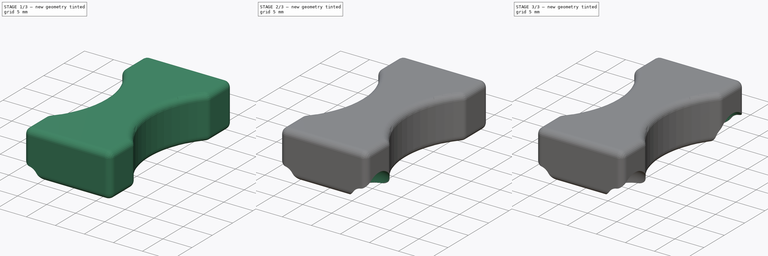
[diagram: build sequence overview — one tinted view per stage of 3, left to right]
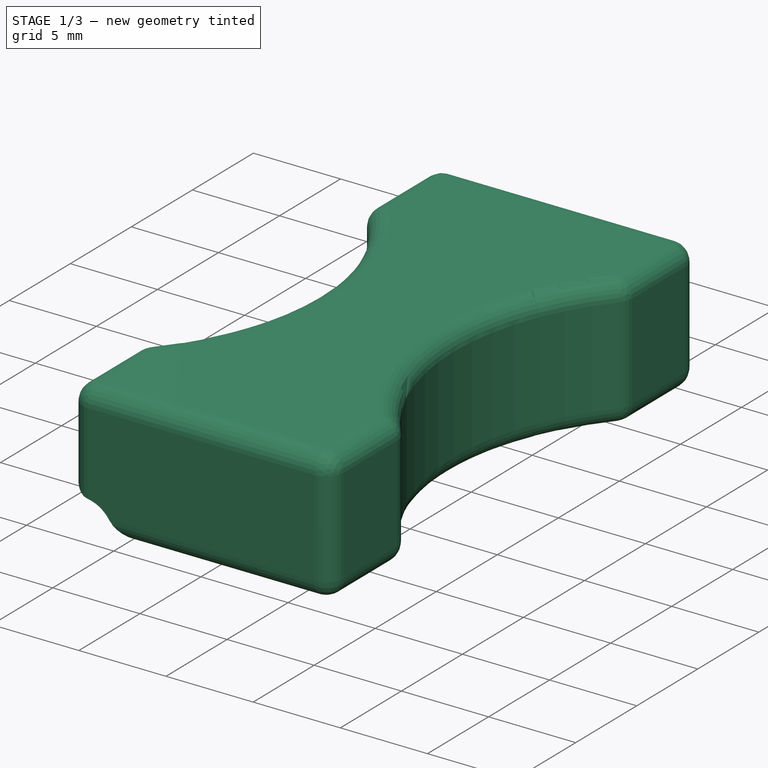
[diagram: stage 1 of 3 — iso view after this stage's code; geometry added in this stage tinted green]
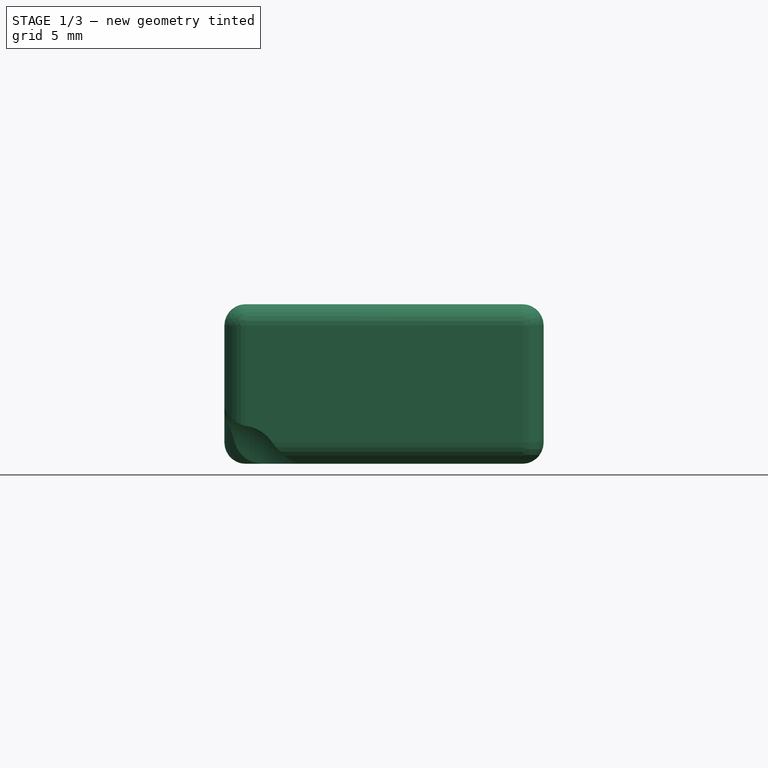
[diagram: stage 1 of 3 — front view after this stage's code; geometry added in this stage tinted green]
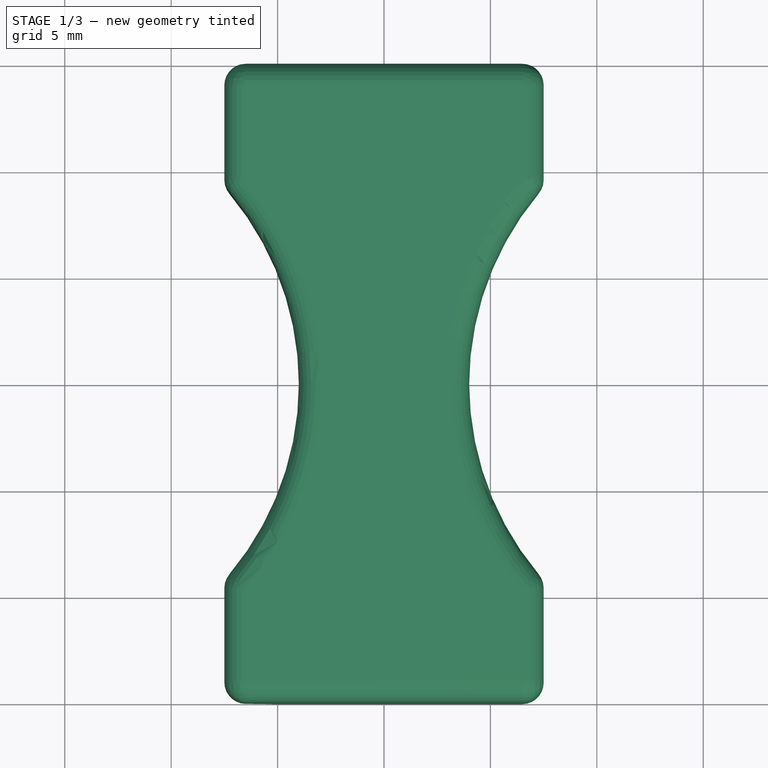
[diagram: stage 1 of 3 — top view after this stage's code; geometry added in this stage tinted green]
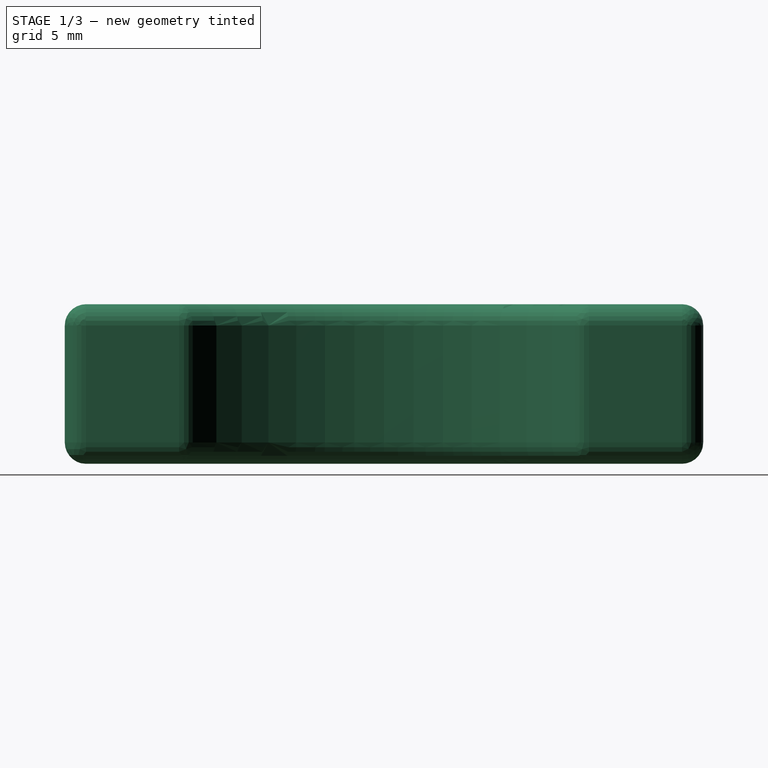
[diagram: stage 1 of 3 — right view after this stage's code; geometry added in this stage tinted green]
FCSTD DOCUMENT  (FreeCAD 0.19R)
Label: chssis-mod
License: All rights reserved
LicenseURL: http://en.wikipedia.org/wiki/All_rights_reserved
objects: PartDesign::SubtractiveSphere×4, Sketcher::SketchObject×2, PartDesign::Hole×2, Part::Feature×1, Part::Refine×1, PartDesign::FeatureBase×1, PartDesign::Body×1
note: 18 computed .brp shape members not serialized (recipe doc carries the construction recipe); baked Part::Feature solids carry a one-line shape summary decoded from their .brp

FEATURE [Part::Feature] chassis_Body001_solid  label="chassis_Body001 (Solid)"
  shape: bbox 15 x 30 x 7.5 mm, 2256 faces (baked)
FEATURE [Part::Refine] chassis_Body001_solid001  label="chassis_Body001 (Solid)001"
  Source = -> chassis_Body001_solid
FEATURE [PartDesign::FeatureBase] BaseFeature
  BaseFeature = -> chassis_Body001_solid001
FEATURE [Sketcher::SketchObject] Sketch
  FullyConstrained = true
  MapMode = 5
  Placement = pos=(-7.5,0,0) rot=(0.57735,-0.57735,-0.57735;2.0944rad)
  Support = -> [BaseFeature]
  sketch-geometry (2):
    g0: Circle CenterX=-12 CenterY=0 CenterZ=0 NormalX=0 NormalY=0 NormalZ=1 AngleXU=0 Radius=3.5
    g1: Circle CenterX=12 CenterY=0 CenterZ=0 NormalX=0 NormalY=0 NormalZ=1 AngleXU=0 Radius=3.5
  constraints (6):
    c: PointOnObject(g0,g-1)
    c: PointOnObject(g1,g-1)
    c: Radius(g1) = 3.5
    c: Radius(g0) = 3.5
    c: Distance(g0,g-2) = 12
    c: Distance(g1,g-2) = 12
FEATURE [Sketcher::SketchObject] Sketch001
  FullyConstrained = true
  MapMode = 5
  Placement = pos=(7.5,0,0) rot=(0.57735,0.57735,0.57735;2.0944rad)
  sketch-geometry (2):
    g0: Circle CenterX=12 CenterY=0 CenterZ=0 NormalX=0 NormalY=0 NormalZ=1 AngleXU=0 Radius=3.5
    g1: Circle CenterX=-12 CenterY=0 CenterZ=0 NormalX=0 NormalY=0 NormalZ=1 AngleXU=0 Radius=3.5
  constraints (6):
    c: PointOnObject(g0,g-1)
    c: PointOnObject(g1,g-1)
    c: Radius(g0) = 3.5
    c: Radius(g1) = 3.5
    c: Distance(g0,g-2) = 12
    c: Distance(g1,g-2) = 12
FEATURE [PartDesign::SubtractiveSphere] Sphere
  Angle1 = -90
  Angle2 = 90
  Angle3 = 360
  AttacherType = Attacher::AttachEngine3D
  AttachmentOffset = pos=(0,0,-0.75) rot=(0,0,1;0rad)
  BaseFeature = -> BaseFeature
  MapMode = 11
  Placement = pos=(-6.75,-12,-2e-16) rot=(0,-1,0;1.5708rad)
  Radius = 3.5
  Support = -> [Sketch]
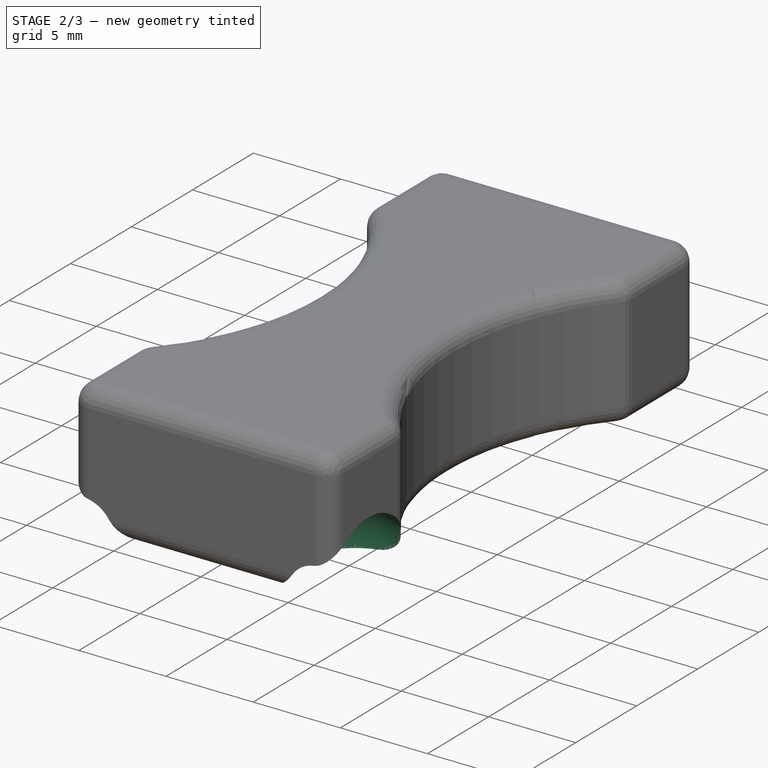
[diagram: stage 2 of 3 — iso view after this stage's code; geometry added in this stage tinted green]
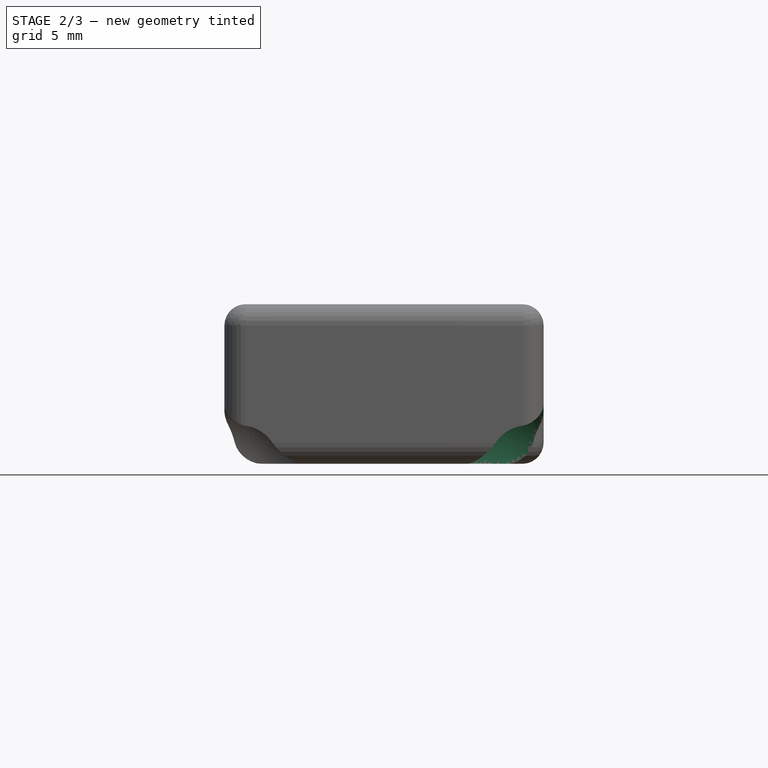
[diagram: stage 2 of 3 — front view after this stage's code; geometry added in this stage tinted green]
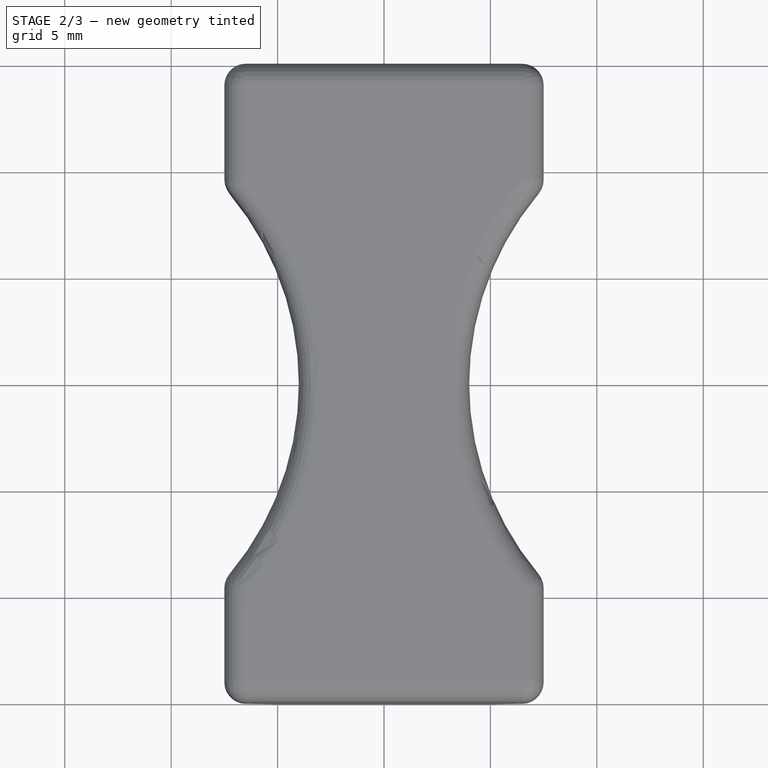
[diagram: stage 2 of 3 — top view after this stage's code; geometry added in this stage tinted green]
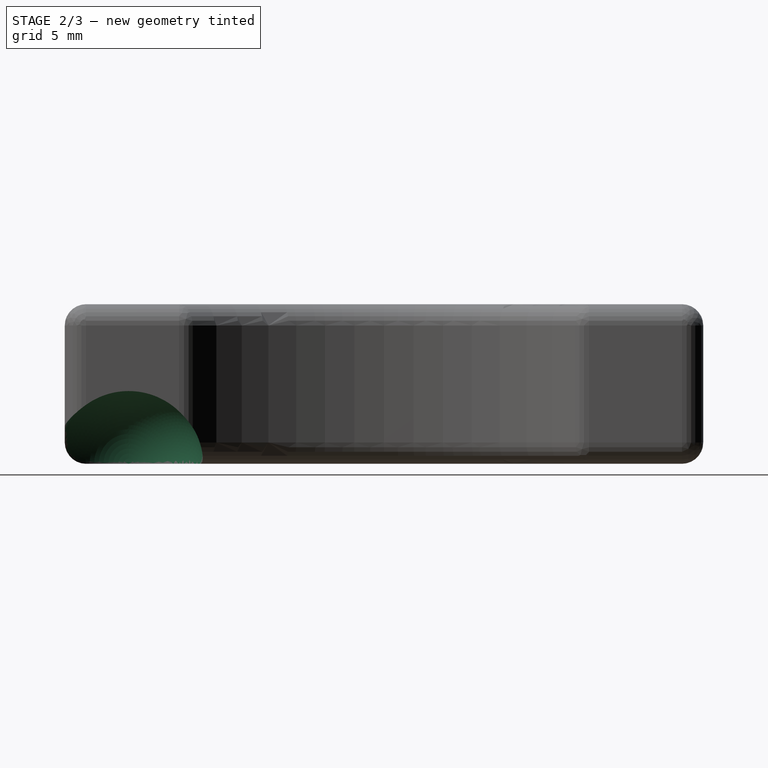
[diagram: stage 2 of 3 — right view after this stage's code; geometry added in this stage tinted green]
FEATURE [PartDesign::SubtractiveSphere] Sphere001
  Angle1 = -90
  Angle2 = 90
  Angle3 = 360
  AttacherType = Attacher::AttachEngine3D
  AttachmentOffset = pos=(0,0,-0.75) rot=(0,0,1;0rad)
  BaseFeature = -> Sphere
  MapMode = 11
  Placement = pos=(-6.75,12,-2e-16) rot=(0,-1,0;1.5708rad)
  Radius = 3.5
  Support = -> [Sketch]
FEATURE [PartDesign::Hole] Hole
  BaseFeature = -> Sphere001
  Depth = 2.5
  DepthType = 0
  Diameter = 6
  DrillForDepth = false
  DrillPoint = 0
  DrillPointAngle = 118
  HoleCutCountersinkAngle = 90
  HoleCutCustomValues = false
  HoleCutDepth = 0
  HoleCutDiameter = 6.1
  HoleCutType = 0
  ModelActualThread = false
  Placement = pos=(-6.75,12,-2e-16) rot=(0,-1,0;1.5708rad)
  Profile = -> Sketch
  Tapered = false
  TaperedAngle = 90
  ThreadAngle = 0
  ThreadClass = 0
  ThreadCutOffInner = 0
  ThreadCutOffOuter = 0
  ThreadDirection = 0
  ThreadFit = 0
  ThreadPitch = 0
  ThreadSize = 0
  ThreadType = 0
  Threaded = false
FEATURE [PartDesign::SubtractiveSphere] Sphere002
  Angle1 = -90
  Angle2 = 90
  Angle3 = 360
  AttacherType = Attacher::AttachEngine3D
  AttachmentOffset = pos=(0,0,-0.75) rot=(0,0,1;0rad)
  BaseFeature = -> Hole
  MapMode = 11
  Placement = pos=(6.75,-12,2e-16) rot=(0.707107,0,0.707107;3.14159rad)
  Radius = 3.5
  Support = -> [Sketch001]
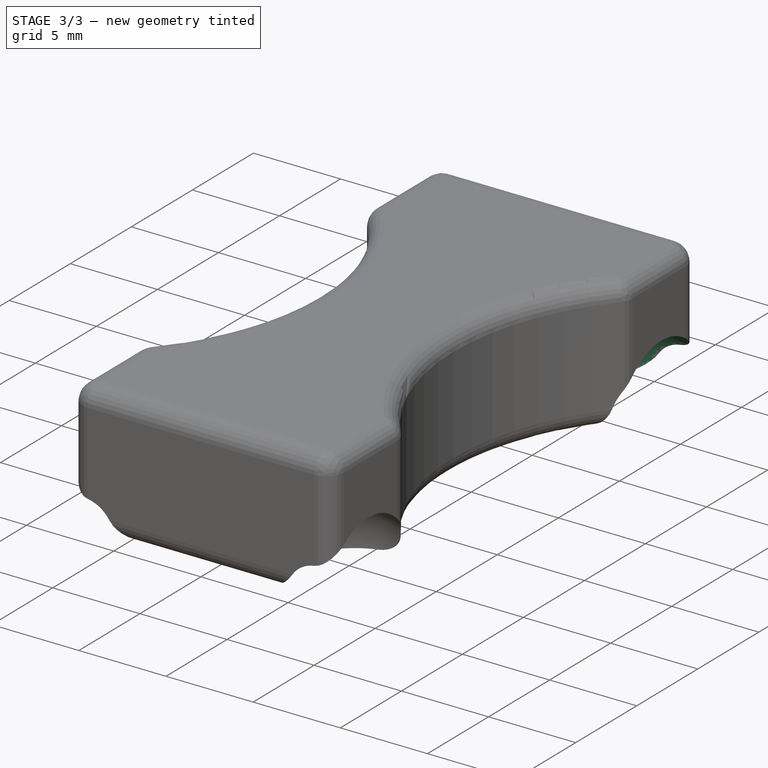
[diagram: stage 3 of 3 — iso view after this stage's code; geometry added in this stage tinted green]
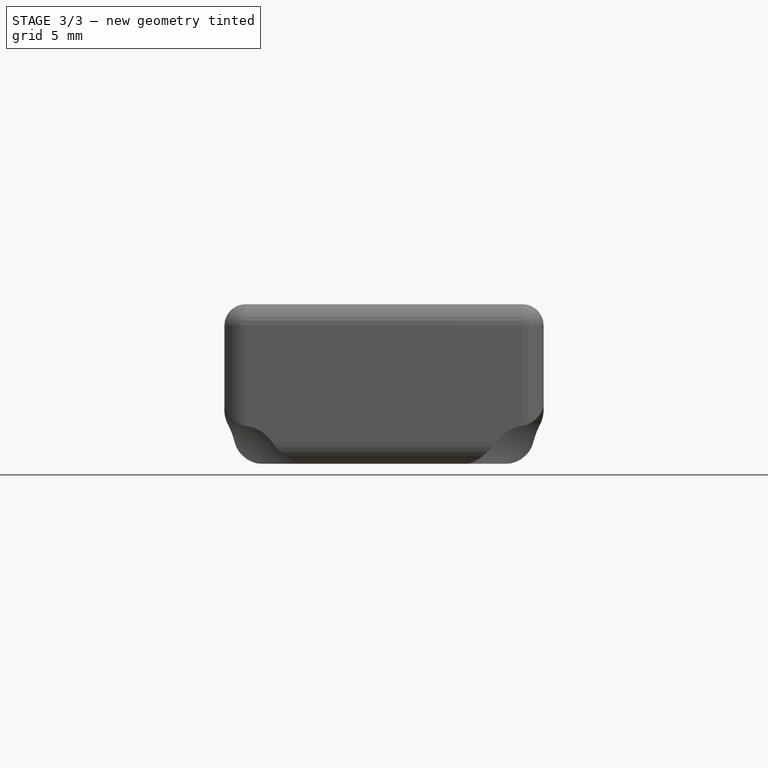
[diagram: stage 3 of 3 — front view after this stage's code; geometry added in this stage tinted green]
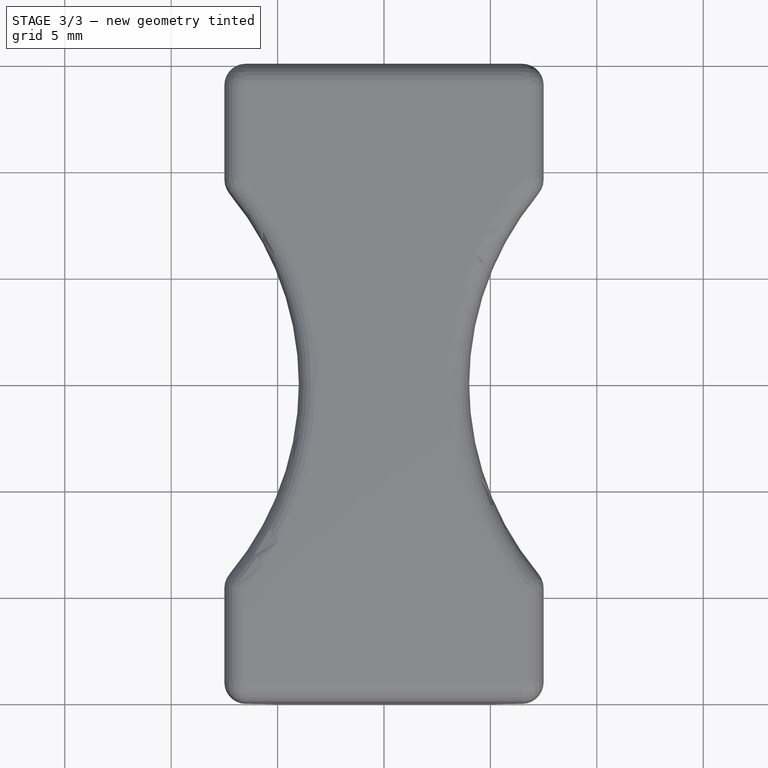
[diagram: stage 3 of 3 — top view after this stage's code; geometry added in this stage tinted green]
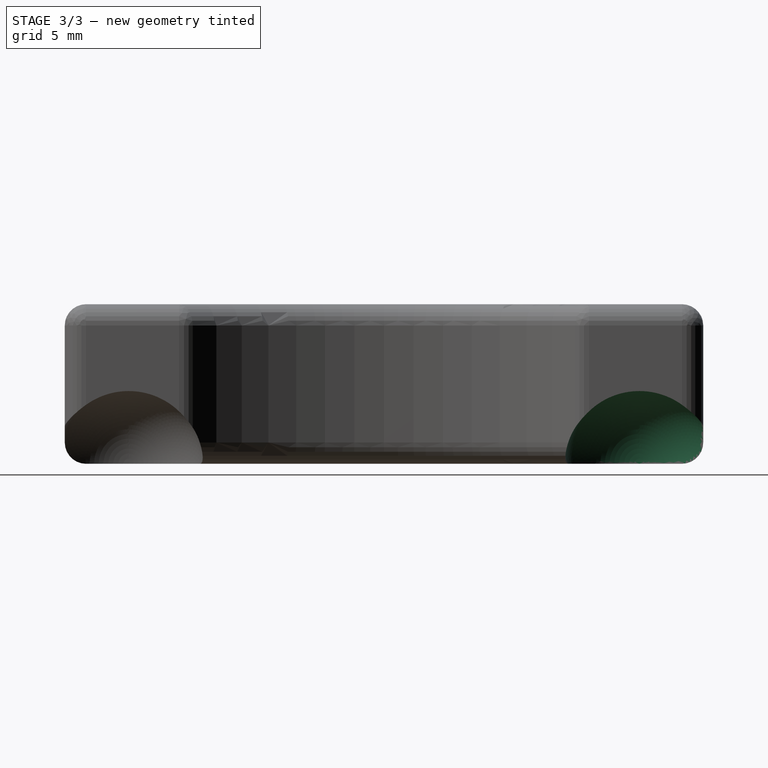
[diagram: stage 3 of 3 — right view after this stage's code; geometry added in this stage tinted green]
FEATURE [PartDesign::SubtractiveSphere] Sphere003
  Angle1 = -90
  Angle2 = 90
  Angle3 = 360
  AttacherType = Attacher::AttachEngine3D
  AttachmentOffset = pos=(0,0,-0.75) rot=(0,0,1;0rad)
  BaseFeature = -> Sphere002
  MapMode = 11
  Placement = pos=(6.75,12,2e-16) rot=(0.707107,0,0.707107;3.14159rad)
  Radius = 3.5
  Support = -> [Sketch001]
FEATURE [PartDesign::Hole] Hole001
  BaseFeature = -> Sphere003
  Depth = 2.5
  DepthType = 0
  Diameter = 6
  DrillForDepth = false
  DrillPoint = 0
  DrillPointAngle = 118
  HoleCutCountersinkAngle = 90
  HoleCutCustomValues = false
  HoleCutDepth = 0
  HoleCutDiameter = 6.1
  HoleCutType = 0
  ModelActualThread = false
  Placement = pos=(6.75,12,2e-16) rot=(0.707107,0,0.707107;3.14159rad)
  Profile = -> Sketch001
  Tapered = false
  TaperedAngle = 90
  ThreadAngle = 0
  ThreadClass = 0
  ThreadCutOffInner = 0
  ThreadCutOffOuter = 0
  ThreadDirection = 0
  ThreadFit = 0
  ThreadPitch = 0
  ThreadSize = 0
  ThreadType = 0
  Threaded = false
FEATURE [PartDesign::Body] Body
  BaseFeature = -> chassis_Body001_solid001
  Group = -> [BaseFeature,Sketch,Sketch001,Sphere,Sphere001,Hole,Sphere002,Sphere003,Hole001]
  Origin = -> Origin
  Tip = -> Hole001
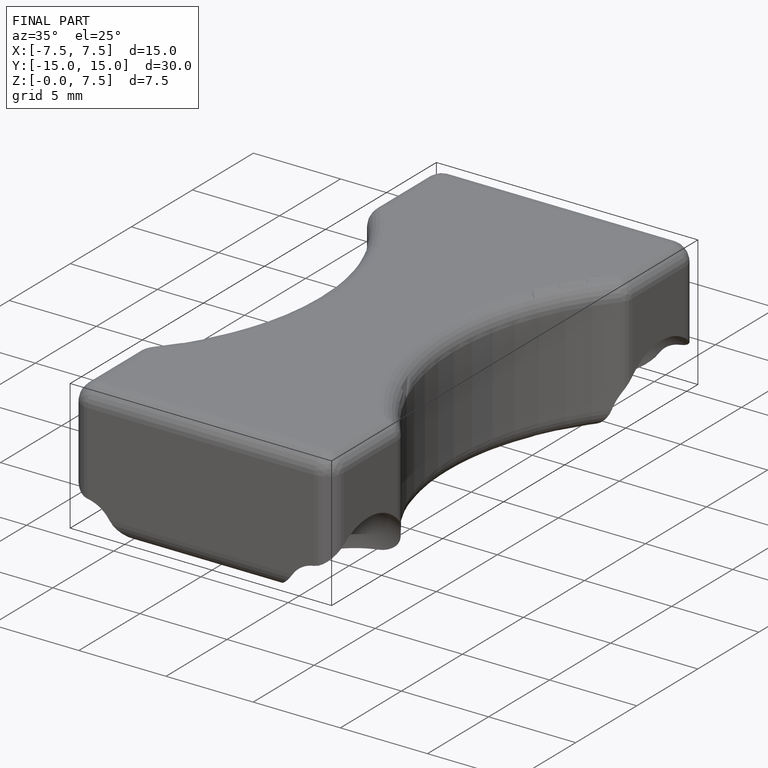
[diagram: finished part — iso view with bounding-box wireframe]
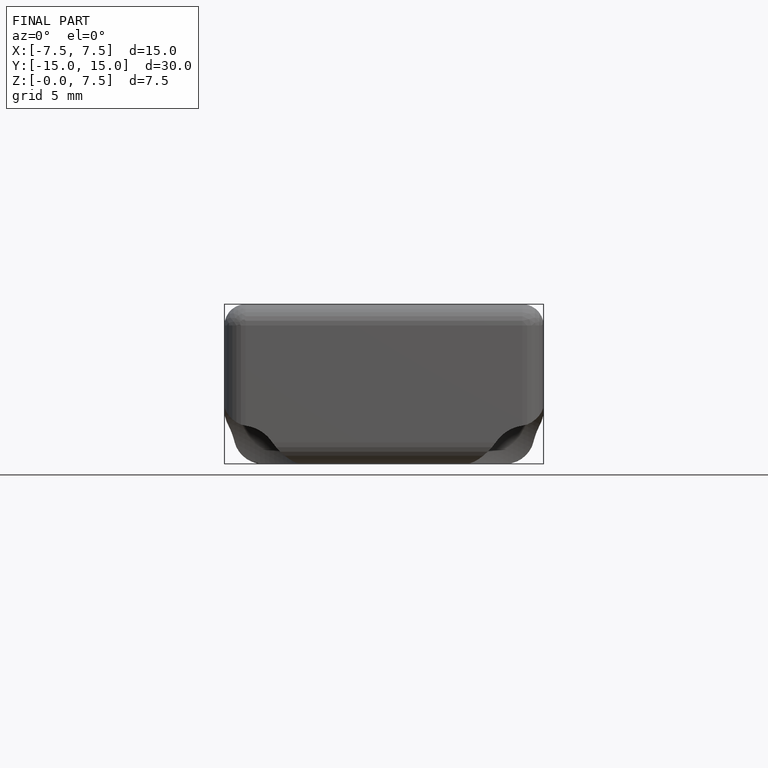
[diagram: finished part — front view with bounding-box wireframe]
